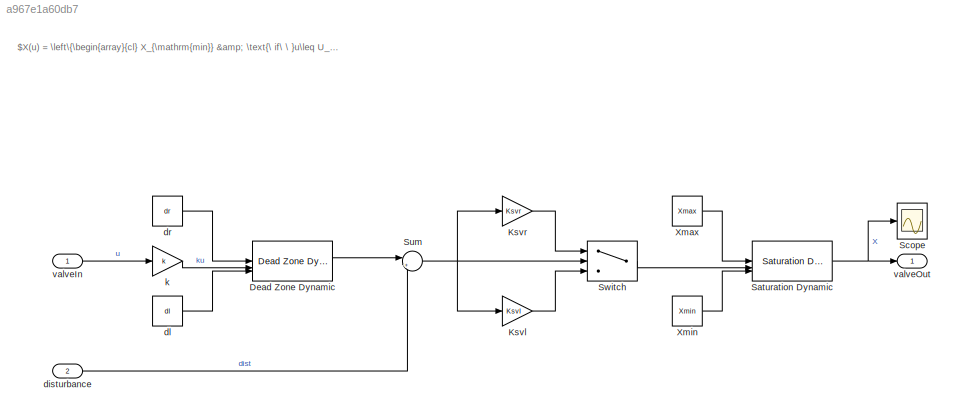
MODEL slx_a967e1a60db7
KIND model
CONFIG AbsTol = auto
CONFIG EnableMultiTasking = off
CONFIG FixedStep = Ts_local
CONFIG MaxStep = auto
CONFIG MinStep = auto
CONFIG RelTol = 1e-3
CONFIG SampleTimeConstraint = Unconstrained
CONFIG SolverName = FixedStepAuto
CONFIG StartTime = 0.0
CONFIG StopTime = 10.0
WORKSPACE source: mxarray member
WORKSPACE Ksvl = 0.0276
WORKSPACE Ksvr = 0.04
WORKSPACE Xmax = 0.006
WORKSPACE Xmin = -0.004
WORKSPACE dl = -0.014
WORKSPACE dr = 0.014
WORKSPACE k = 0.15
BLOCK [Reference] Dead Zone Dynamic  REF=simulink/Discontinuities/Dead Zone
Dynamic
  SourceBlock = simulink/Discontinuities/Dead Zone\nDynamic
  SourceType = Dead Zone Dynamic
BLOCK [Gain] Ksvl
  Gain = Ksvl
BLOCK [Gain] Ksvr
  Gain = Ksvr
BLOCK [Reference] Saturation Dynamic  REF=simulink/Discontinuities/Saturation
Dynamic
  SourceBlock = simulink/Discontinuities/Saturation\nDynamic
  SourceType = Saturation Dynamic
BLOCK [Scope] Scope
  ActiveDisplayYMaximum = 0.18694
  ActiveDisplayYMinimum = -0.18694
  Commented = on
  Floating = off
  GraphicalSettings = {"GraphicalSettings":{"LegacySettings":true,"Style":{"AxesScalingProperties":{"ScaleAxesLimitsAtStop":false},"Style":{"AxesColor":"[0 0 0]","ChannelNames":[""],"ColorOrder":"[1 0.909803921568627 0.392156862745098;0.149019607843137 0.549019607843137 0.866666666666667;0.96078431372549 0.466666666666667 0.16078431372549;0.286274509803922 0.858823529411765 0.250980392156863;0.752941176470588 0.3607843...<+595ch>
  MultipleDisplayCache = [{"MaxYLimMag":0.18694,"MaxYLimReal":0.18694,"MinYLimMag":0,"MinYLimReal":-0.18694,"PlotAsMagnitudePhase":false,"ShowGrid":true,"ShowLegend":true,"Title":"%<SignalLabel>","YLabel":""}]
  NumInputPorts = 1
  ShowLegend = on
  WasSavedAsWebScope = on
BLOCK [Sum] Sum
  Inputs = |++
BLOCK [Switch] Switch
  InputSameDT = off
  SaturateOnIntegerOverflow = off
BLOCK [Constant] Xmax
  Value = Xmax
BLOCK [Constant] Xmin
  Value = Xmin
BLOCK [Inport] disturbance
  Port = 2
BLOCK [Constant] dl
  Value = dl
BLOCK [Constant] dr
  Value = dr
BLOCK [Gain] k
  Gain = k
BLOCK [Inport] valveIn
BLOCK [Outport] valveOut
ANNOTATION (root): $X(u) = \left\{\begin{array}{cl} X_{\mathrm{min}} & \text{\ if\ \ }u\leq U_{l}\\ K_{\mathrm{svl}}\,\left(u-d_{l}\right) & \text{\ if\ \ }U_{l}<u\leq d_{l}\\ 0 & \text{\ if\ \ }d_{l}<u\leq d_{r}\\ K_{\mathrm{svr}}\,\left(u-d_{r}\right) & \text{\ if\ \ }d_{r}<u\leq U_{r}\\ X_{\mathrm{max}} & \text{\ if\ \ }U_{r}<u \end{array}\right.$
LINE Dead Zone Dynamic:1 -> Sum:1
LINE Ksvl:1 -> Switch:3
LINE Ksvr:1 -> Switch:1
NET Saturation Dynamic:1 -> Scope:1, valveOut:1
NET Sum:1 -> Ksvl:1, Ksvr:1, Switch:2
LINE Switch:1 -> Saturation Dynamic:2
LINE Xmax:1 -> Saturation Dynamic:1
LINE Xmin:1 -> Saturation Dynamic:3
LINE disturbance:1 -> Sum:2
LINE dl:1 -> Dead Zone Dynamic:3
LINE dr:1 -> Dead Zone Dynamic:1
LINE k:1 -> Dead Zone Dynamic:2
LINE valveIn:1 -> k:1
note: NET lines group one-source signal fan-out (src -> all destinations, sorted); 1:1 wires keep LINE
